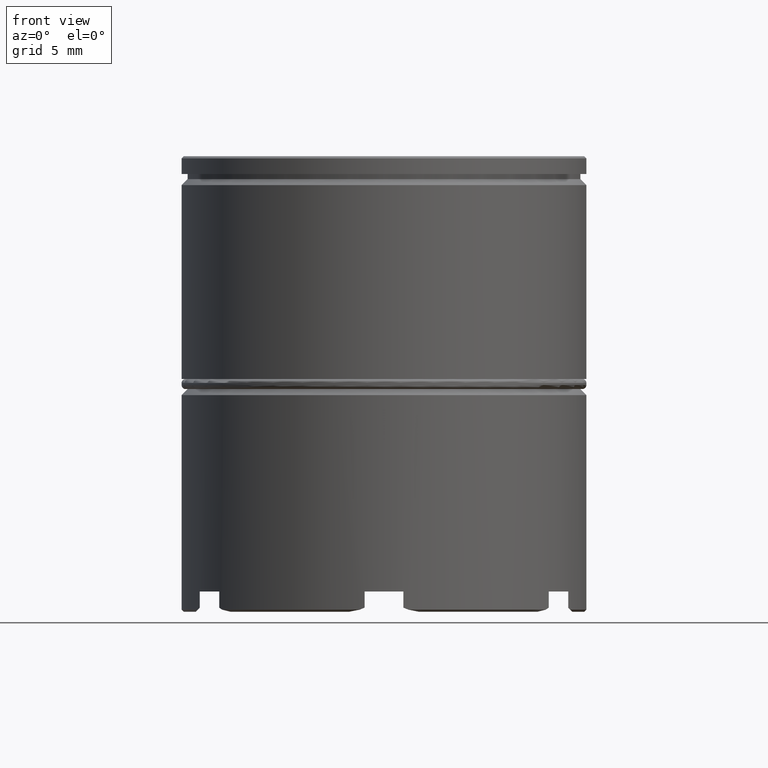
[diagram: clean part render]
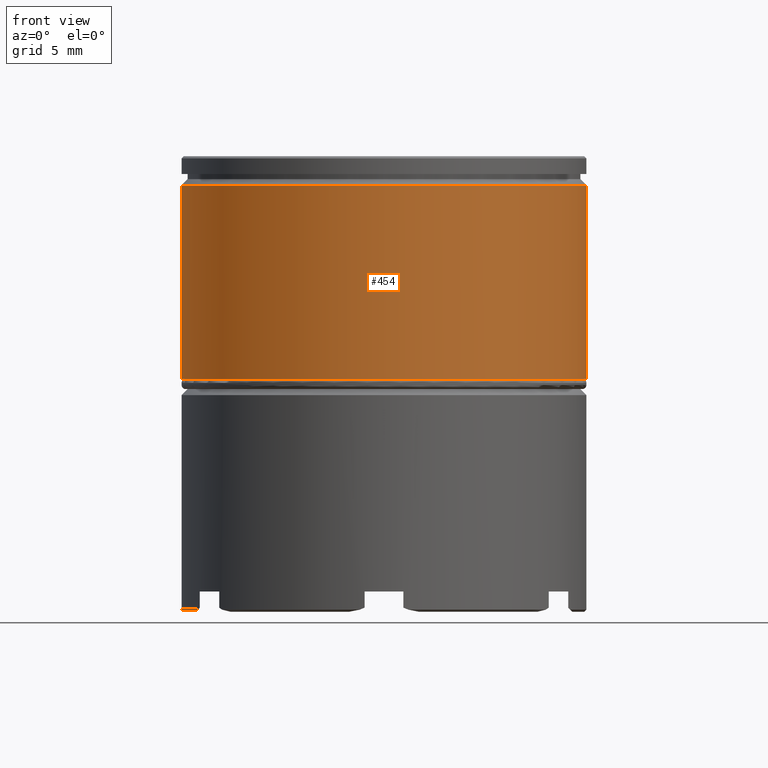
[diagram: same view with one face highlighted and labeled with its STEP entity id]
A machine part, front view. The second image highlights one B-rep face of the part: STEP entity #454.
In plain terms, the highlighted cylindrical surface (partial cylindrical patch) has radius 10 mm, axis along (-0, -0, 1).
Its self-contained STEP definition (entity closure, byte-faithful):
#20 = DIRECTION ( 'NONE',  ( 1.000000000000000000, 0.000000000000000000, 0.000000000000000000 ) ) ;
#113 = VECTOR ( 'NONE', #1485, 1000.000000000000000 ) ;
#169 = AXIS2_PLACEMENT_3D ( 'NONE', #1413, #1559, #277 ) ;
#277 = DIRECTION ( 'NONE',  ( 1.000000000000000000, 0.000000000000000000, 0.000000000000000000 ) ) ;
#281 = ORIENTED_EDGE ( 'NONE', *, *, #1524, .T. ) ;
#301 = VERTEX_POINT ( 'NONE', #913 ) ;
#327 = AXIS2_PLACEMENT_3D ( 'NONE', #1534, #372, #20 ) ;
#372 = DIRECTION ( 'NONE',  ( -0.000000000000000000, -0.000000000000000000, 1.000000000000000000 ) ) ;
#454 = ADVANCED_FACE ( 'NONE', ( #752 ), #991, .T. ) ;
#587 = LINE ( 'NONE', #1625, #113 ) ;
#637 = ORIENTED_EDGE ( 'NONE', *, *, #1316, .F. ) ;
#660 = ORIENTED_EDGE ( 'NONE', *, *, #1435, .T. ) ;
#689 = CIRCLE ( 'NONE', #1571, 10.00000000000000000 ) ;
#752 = FACE_OUTER_BOUND ( 'NONE', #918, .T. ) ;
#801 = ORIENTED_EDGE ( 'NONE', *, *, #830, .T. ) ;
#818 = DIRECTION ( 'NONE',  ( 0.000000000000000000, 0.000000000000000000, -1.000000000000000000 ) ) ;
#830 = EDGE_CURVE ( 'NONE', #1456, #1449, #1146, .T. ) ;
#872 = CARTESIAN_POINT ( 'NONE',  ( -10.00000000000000000, 1.224646799147353256E-15, -11.00000000000000000 ) ) ;
#913 = CARTESIAN_POINT ( 'NONE',  ( -10.00000000000000000, 1.224646799147353256E-15, -1.425000000000008704 ) ) ;
#918 = EDGE_LOOP ( 'NONE', ( #637, #660, #801, #281 ) ) ;
#965 = VECTOR ( 'NONE', #1012, 1000.000000000000000 ) ;
#991 = CYLINDRICAL_SURFACE ( 'NONE', #327, 10.00000000000000000 ) ;
#994 = CIRCLE ( 'NONE', #169, 10.00000000000000000 ) ;
#995 = CARTESIAN_POINT ( 'NONE',  ( 10.00000000000000000, 0.000000000000000000, -11.00000000000000000 ) ) ;
#1007 = CARTESIAN_POINT ( 'NONE',  ( 10.00000000000000000, 0.000000000000000000, -1.425000000000008704 ) ) ;
#1012 = DIRECTION ( 'NONE',  ( -0.000000000000000000, -0.000000000000000000, 1.000000000000000000 ) ) ;
#1119 = CARTESIAN_POINT ( 'NONE',  ( 10.00000000000000000, 0.000000000000000000, 0.000000000000000000 ) ) ;
#1146 = LINE ( 'NONE', #1119, #965 ) ;
#1165 = DIRECTION ( 'NONE',  ( 1.000000000000000000, 0.000000000000000000, 0.000000000000000000 ) ) ;
#1300 = CARTESIAN_POINT ( 'NONE',  ( 0.000000000000000000, 0.000000000000000000, -1.425000000000008704 ) ) ;
#1316 = EDGE_CURVE ( 'NONE', #1354, #301, #587, .T. ) ;
#1354 = VERTEX_POINT ( 'NONE', #872 ) ;
#1413 = CARTESIAN_POINT ( 'NONE',  ( 0.000000000000000000, 0.000000000000000000, -11.00000000000000000 ) ) ;
#1435 = EDGE_CURVE ( 'NONE', #1354, #1456, #994, .T. ) ;
#1449 = VERTEX_POINT ( 'NONE', #1007 ) ;
#1456 = VERTEX_POINT ( 'NONE', #995 ) ;
#1485 = DIRECTION ( 'NONE',  ( -0.000000000000000000, -0.000000000000000000, 1.000000000000000000 ) ) ;
#1524 = EDGE_CURVE ( 'NONE', #1449, #301, #689, .T. ) ;
#1534 = CARTESIAN_POINT ( 'NONE',  ( 0.000000000000000000, 0.000000000000000000, 0.000000000000000000 ) ) ;
#1559 = DIRECTION ( 'NONE',  ( -0.000000000000000000, -0.000000000000000000, 1.000000000000000000 ) ) ;
#1571 = AXIS2_PLACEMENT_3D ( 'NONE', #1300, #818, #1165 ) ;
#1625 = CARTESIAN_POINT ( 'NONE',  ( -10.00000000000000000, 1.224646799147353256E-15, 0.000000000000000000 ) ) ;